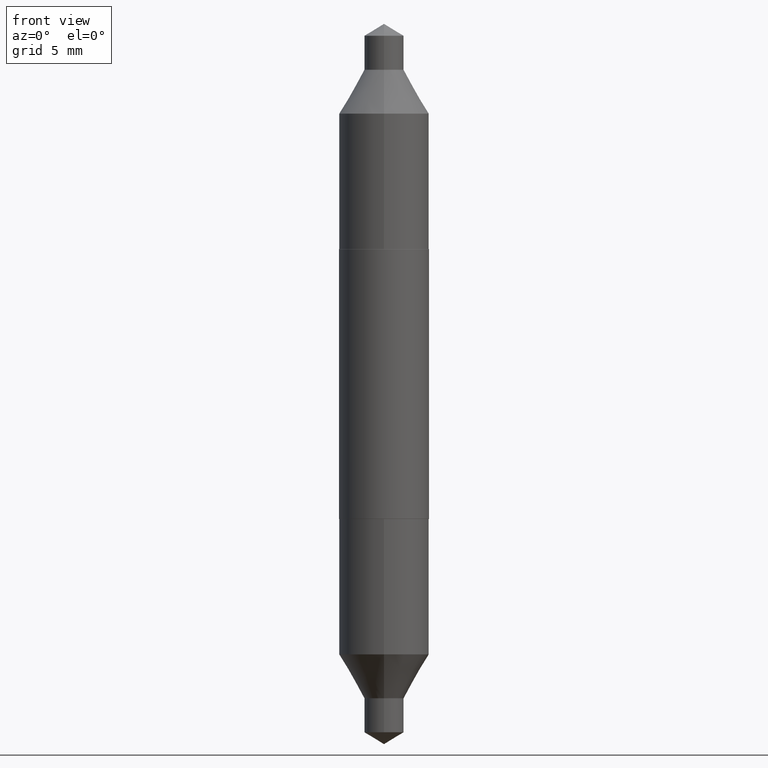
[diagram: clean part render]
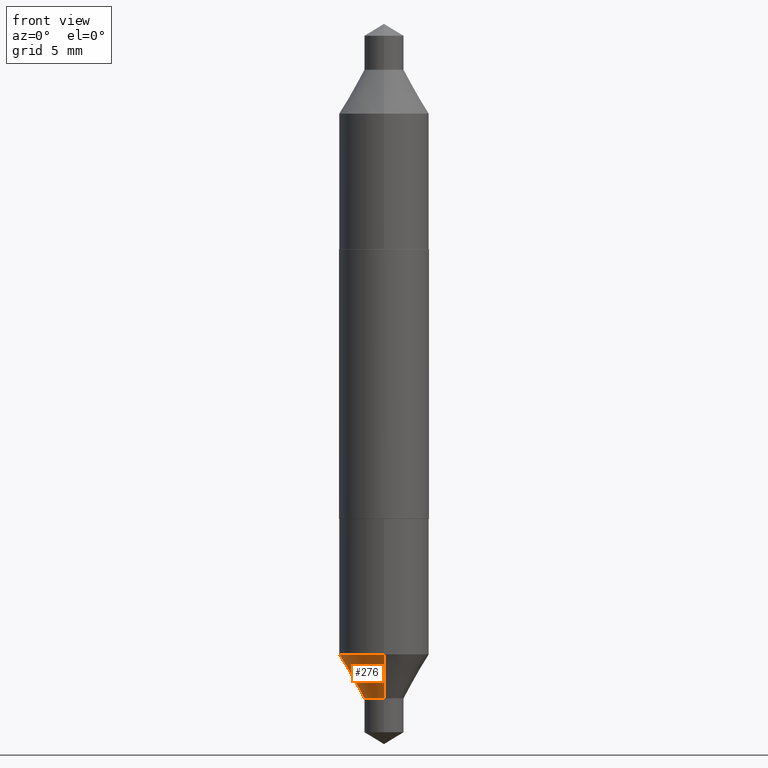
[diagram: same view with one face highlighted and labeled with its STEP entity id]
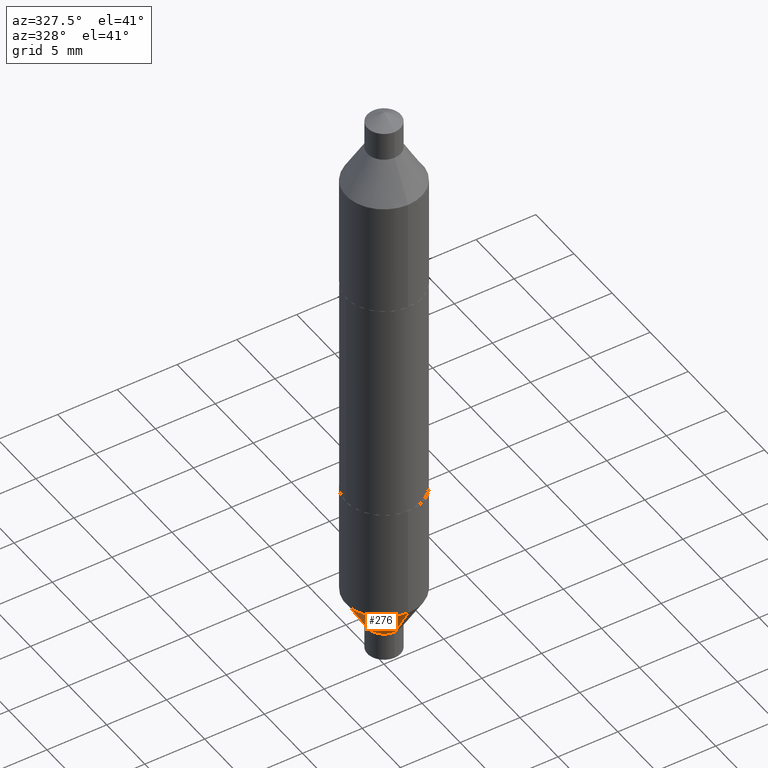
[diagram: same view with one face highlighted and labeled with its STEP entity id]
A machine part, front view. The second image highlights one B-rep face of the part: STEP entity #276.
A second angle (auxiliary view) of the same face is appended — the face is thin or edge-on in the first view.
In plain terms, the highlighted conical surface has half-angle 30 deg.
Its self-contained STEP definition (entity closure, byte-faithful):
#24 = DIRECTION ( 'NONE',  ( 3.552713678800442554E-15, 0.4999999999999978351, 0.8660254037844399289 ) ) ;
#79 = VERTEX_POINT ( 'NONE', #667 ) ;
#93 = ORIENTED_EDGE ( 'NONE', *, *, #229, .F. ) ;
#105 = VERTEX_POINT ( 'NONE', #648 ) ;
#107 = DIRECTION ( 'NONE',  ( -2.454362535592602182E-29, 3.478745012132013039E-15, 1.000000000000000000 ) ) ;
#115 = EDGE_CURVE ( 'NONE', #79, #388, #439, .T. ) ;
#117 = DIRECTION ( 'NONE',  ( -2.454362535592602182E-29, 3.478745012132013039E-15, 1.000000000000000000 ) ) ;
#139 = AXIS2_PLACEMENT_3D ( 'NONE', #281, #332, #554 ) ;
#179 = FACE_OUTER_BOUND ( 'NONE', #562, .T. ) ;
#193 = DIRECTION ( 'NONE',  ( -3.491481338843118367E-15, -0.4999999999999918954, 0.8660254037844432595 ) ) ;
#229 = EDGE_CURVE ( 'NONE', #388, #438, #474, .T. ) ;
#248 = VECTOR ( 'NONE', #24, 39.37007874015748854 ) ;
#254 = CARTESIAN_POINT ( 'NONE',  ( -8.728703347107652936E-16, -0.1250000000000026923, -0.7508368282279057615 ) ) ;
#276 = ADVANCED_FACE ( 'NONE', ( #179 ), #518, .T. ) ;
#281 = CARTESIAN_POINT ( 'NONE',  ( 1.839490633017951177E-29, -2.616745993639524273E-15, -0.7508368282279060946 ) ) ;
#292 = CARTESIAN_POINT ( 'NONE',  ( 8.881784197001394318E-16, 0.1249999999999974742, -0.7508368282279065387 ) ) ;
#298 = LINE ( 'NONE', #567, #689 ) ;
#332 = DIRECTION ( 'NONE',  ( -2.454362535592602182E-29, 3.478745012132013039E-15, 1.000000000000000000 ) ) ;
#376 = DIRECTION ( 'NONE',  ( -6.982962677686265922E-15, -1.000000000000000000, 2.497118824190368833E-15 ) ) ;
#388 = VERTEX_POINT ( 'NONE', #292 ) ;
#420 = EDGE_CURVE ( 'NONE', #105, #438, #298, .T. ) ;
#438 = VERTEX_POINT ( 'NONE', #254 ) ;
#439 = LINE ( 'NONE', #559, #248 ) ;
#462 = AXIS2_PLACEMENT_3D ( 'NONE', #654, #107, #376 ) ;
#470 = CARTESIAN_POINT ( 'NONE',  ( 2.138341600030304914E-29, -3.040329020103069038E-15, -0.8726000000000000423 ) ) ;
#474 = CIRCLE ( 'NONE', #139, 0.1250000000000000555 ) ;
#518 = CONICAL_SURFACE ( 'NONE', #462, 0.05469999999999999168, 0.5235987755982929315 ) ;
#551 = ORIENTED_EDGE ( 'NONE', *, *, #572, .T. ) ;
#554 = DIRECTION ( 'NONE',  ( -6.982962677686266711E-15, -1.000000000000000000, 3.278217592397114284E-15 ) ) ;
#559 = CARTESIAN_POINT ( 'NONE',  ( 3.886668764607960911E-16, 0.05469999999999695245, -0.8726000000000001533 ) ) ;
#562 = EDGE_LOOP ( 'NONE', ( #586, #551, #669, #93 ) ) ;
#567 = CARTESIAN_POINT ( 'NONE',  ( -3.819680584694172401E-16, -0.05470000000000303092, -0.8725999999999998202 ) ) ;
#570 = AXIS2_PLACEMENT_3D ( 'NONE', #470, #117, #700 ) ;
#572 = EDGE_CURVE ( 'NONE', #79, #105, #641, .T. ) ;
#586 = ORIENTED_EDGE ( 'NONE', *, *, #115, .F. ) ;
#641 = CIRCLE ( 'NONE', #570, 0.05469999999999999168 ) ;
#648 = CARTESIAN_POINT ( 'NONE',  ( -3.819680584694172401E-16, -0.05470000000000303092, -0.8725999999999998202 ) ) ;
#654 = CARTESIAN_POINT ( 'NONE',  ( 2.138341600030304914E-29, -3.040329020103069038E-15, -0.8726000000000000423 ) ) ;
#667 = CARTESIAN_POINT ( 'NONE',  ( 3.886668764607983591E-16, 0.05469999999999694551, -0.8726000000000001533 ) ) ;
#669 = ORIENTED_EDGE ( 'NONE', *, *, #420, .T. ) ;
#689 = VECTOR ( 'NONE', #193, 39.37007874015748143 ) ;
#700 = DIRECTION ( 'NONE',  ( -6.982962677686265922E-15, -1.000000000000000000, 2.497118824190368833E-15 ) ) ;